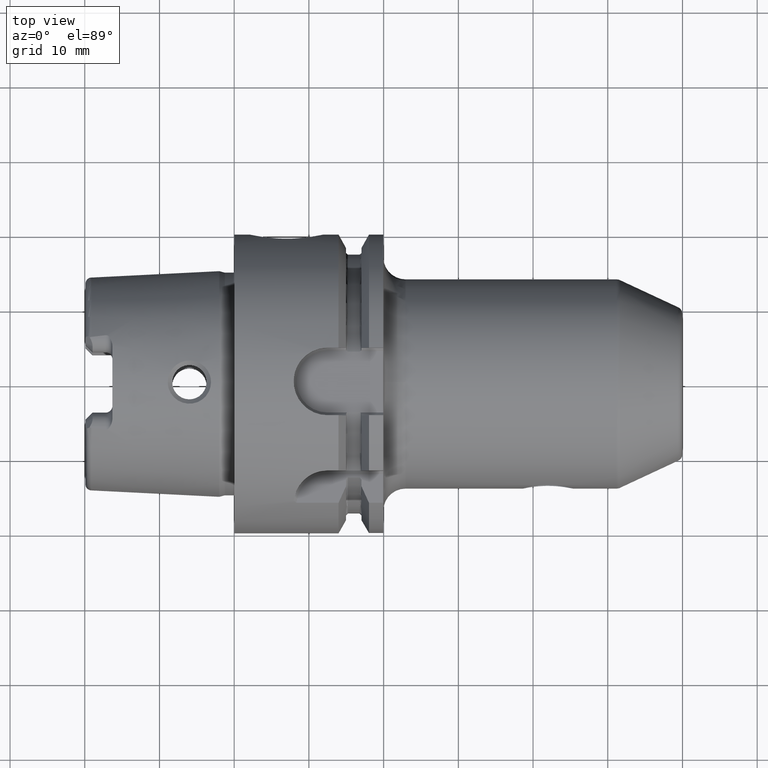
[diagram: clean part render]
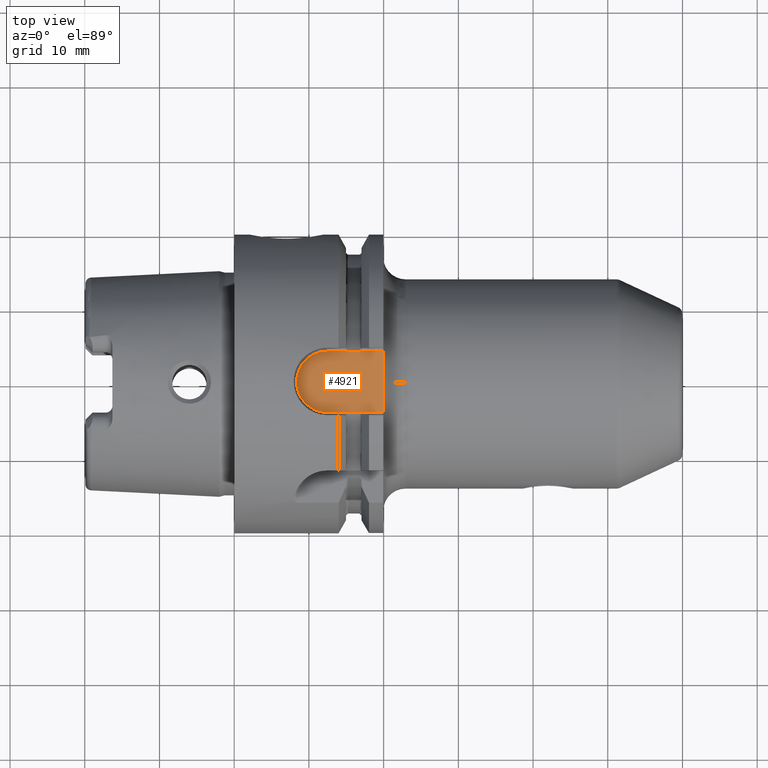
[diagram: same view with one face highlighted and labeled with its STEP entity id]
A machine part, top view. The second image highlights one B-rep face of the part: STEP entity #4921.
In plain terms, the highlighted planar face has unit normal (0, 0, 1).
Its self-contained STEP definition (entity closure, byte-faithful):
#1382=DIRECTION('',(0.E0,9.999999999925E-1,-3.873654482755E-6));
#1383=VECTOR('',#1382,2.273378394555E0);
#1384=CARTESIAN_POINT('',(1.995E1,1.841121605462E0,1.690000880628E1));
#1385=LINE('',#1384,#1383);
#1423=DIRECTION('',(0.E0,9.999999999992E-1,1.301774193577E-6));
#1424=VECTOR('',#1423,2.273319339446E0);
#1425=CARTESIAN_POINT('',(1.995E1,-4.1145E0,1.69E1));
#1426=LINE('',#1425,#1424);
#1432=CARTESIAN_POINT('',(1.995166712983E1,2.396912238614E-4,1.69E1));
#1433=CARTESIAN_POINT('',(1.995166722675E1,-2.046607415398E-1,1.69E1));
#1434=CARTESIAN_POINT('',(1.995140491991E1,-6.142642222903E-1,
1.690000039458E1));
#1435=CARTESIAN_POINT('',(1.995047669965E1,-1.228279460088E0,1.689999861897E1));
#1436=CARTESIAN_POINT('',(1.995E1,-1.636958723099E0,1.690000295935E1));
#1437=CARTESIAN_POINT('',(1.995E1,-1.841180660556E0,1.690000295935E1));
#1439=DIRECTION('',(-1.E0,0.E0,0.E0));
#1440=VECTOR('',#1439,3.067748527319E0);
#1441=CARTESIAN_POINT('',(1.995E1,-4.1145E0,1.69E1));
#1442=LINE('',#1441,#1440);
#1443=CARTESIAN_POINT('',(1.67875E1,-4.034925649873E0,1.69E1));
#1444=CARTESIAN_POINT('',(1.679787406173E1,-4.034925649873E0,1.69E1));
#1445=CARTESIAN_POINT('',(1.681719795106E1,-4.040402098261E0,1.69E1));
#1446=CARTESIAN_POINT('',(1.684231266705E1,-4.059484947889E0,1.69E1));
#1447=CARTESIAN_POINT('',(1.686302561359E1,-4.083690612343E0,1.69E1));
#1448=CARTESIAN_POINT('',(1.687599726943E1,-4.103671586136E0,1.69E1));
#1449=CARTESIAN_POINT('',(1.688225147268E1,-4.1145E0,1.69E1));
#1451=CARTESIAN_POINT('',(1.511774852732E1,-4.1145E0,1.69E1));
#1452=CARTESIAN_POINT('',(1.512413446271E1,-4.103443507506E0,1.69E1));
#1453=CARTESIAN_POINT('',(1.513730003709E1,-4.083099399012E0,1.69E1));
#1454=CARTESIAN_POINT('',(1.515942834800E1,-4.057771542358E0,1.69E1));
#1455=CARTESIAN_POINT('',(1.518388415073E1,-4.040012981236E0,1.69E1));
#1456=CARTESIAN_POINT('',(1.520259138077E1,-4.034925649873E0,1.69E1));
#1457=CARTESIAN_POINT('',(1.52125E1,-4.034925649873E0,1.69E1));
#1459=DIRECTION('',(-1.E0,5.592581025807E-9,5.448607834411E-9));
#1460=VECTOR('',#1459,2.653248516793E0);
#1461=CARTESIAN_POINT('',(1.511774852732E1,-4.1145E0,1.69E1));
#1462=LINE('',#1461,#1460);
#1463=CARTESIAN_POINT('',(1.24645E1,0.E0,1.689999871139E1));
#1464=DIRECTION('',(0.E0,0.E0,-1.E0));
#1465=DIRECTION('',(0.E0,-1.E0,0.E0));
#1466=AXIS2_PLACEMENT_3D('',#1463,#1464,#1465);
#1468=DIRECTION('',(1.E0,5.563888486479E-9,-5.477296021577E-9));
#1469=VECTOR('',#1468,2.653248516888E0);
#1470=CARTESIAN_POINT('',(1.246450001043E1,4.114499985238E0,1.690000001453E1));
#1471=LINE('',#1470,#1469);
#1472=CARTESIAN_POINT('',(1.52125E1,4.034925649873E0,1.69E1));
#1473=CARTESIAN_POINT('',(1.520175327246E1,4.034925649873E0,1.69E1));
#1474=CARTESIAN_POINT('',(1.518193945550E1,4.040936564755E0,1.69E1));
#1475=CARTESIAN_POINT('',(1.515790400694E1,4.059321494075E0,1.69E1));
#1476=CARTESIAN_POINT('',(1.513653778514E1,4.084220439880E0,1.69E1));
#1477=CARTESIAN_POINT('',(1.512387101856E1,4.103899629915E0,1.69E1));
#1478=CARTESIAN_POINT('',(1.511774852732E1,4.1145E0,1.69E1));
#1480=CARTESIAN_POINT('',(1.688225147268E1,4.1145E0,1.69E1));
#1481=CARTESIAN_POINT('',(1.687589987428E1,4.103502957941E0,1.69E1));
#1482=CARTESIAN_POINT('',(1.686273950578E1,4.083130775051E0,1.69E1));
#1483=CARTESIAN_POINT('',(1.684004064246E1,4.057117367548E0,1.69E1));
#1484=CARTESIAN_POINT('',(1.681453675275E1,4.039236764589E0,1.69E1));
#1485=CARTESIAN_POINT('',(1.679671103197E1,4.034925649873E0,1.69E1));
#1486=CARTESIAN_POINT('',(1.67875E1,4.034925649873E0,1.69E1));
#1488=DIRECTION('',(1.E0,0.E0,0.E0));
#1489=VECTOR('',#1488,3.067748527319E0);
#1490=CARTESIAN_POINT('',(1.688225147268E1,4.1145E0,1.69E1));
#1491=LINE('',#1490,#1489);
#1492=CARTESIAN_POINT('',(1.995E1,1.841121605462E0,1.690000880628E1));
#1493=CARTESIAN_POINT('',(1.995E1,1.636864330633E0,1.690000880628E1));
#1494=CARTESIAN_POINT('',(1.995047679372E1,1.228261816878E0,1.689999589040E1));
#1495=CARTESIAN_POINT('',(1.995140452061E1,6.145198602053E-1,1.690000117417E1));
#1496=CARTESIAN_POINT('',(1.995166703294E1,2.050635730530E-1,1.69E1));
#1497=CARTESIAN_POINT('',(1.995166712983E1,2.396912238614E-4,1.69E1));
#1770=DIRECTION('',(-1.E0,0.E0,0.E0));
#1771=VECTOR('',#1770,1.575E0);
#1772=CARTESIAN_POINT('',(1.67875E1,4.034925649873E0,1.69E1));
#1773=LINE('',#1772,#1771);
#1774=DIRECTION('',(1.E0,0.E0,0.E0));
#1775=VECTOR('',#1774,1.575E0);
#1776=CARTESIAN_POINT('',(1.52125E1,-4.034925649873E0,1.69E1));
#1777=LINE('',#1776,#1775);
#3082=CARTESIAN_POINT('',(1.52125E1,-4.034925649873E0,1.69E1));
#3084=VERTEX_POINT('',#3082);
#3086=CARTESIAN_POINT('',(1.67875E1,-4.034925649873E0,1.69E1));
#3088=VERTEX_POINT('',#3086);
#3100=CARTESIAN_POINT('',(1.52125E1,4.034925649873E0,1.69E1));
#3102=VERTEX_POINT('',#3100);
#3104=CARTESIAN_POINT('',(1.67875E1,4.034925649873E0,1.69E1));
#3106=VERTEX_POINT('',#3104);
#3112=VERTEX_POINT('',#1478);
#3113=VERTEX_POINT('',#1451);
#3114=VERTEX_POINT('',#1480);
#3115=VERTEX_POINT('',#1449);
#3141=CARTESIAN_POINT('',(1.24645E1,-4.114498623506E0,1.689999871139E1));
#3142=CARTESIAN_POINT('',(1.24645E1,4.114498623506E0,1.689999871139E1));
#3143=VERTEX_POINT('',#3141);
#3144=VERTEX_POINT('',#3142);
#3153=CARTESIAN_POINT('',(1.995E1,-4.1145E0,1.69E1));
#3155=VERTEX_POINT('',#3153);
#3158=CARTESIAN_POINT('',(1.995E1,4.1145E0,1.69E1));
#3160=VERTEX_POINT('',#3158);
#3335=CARTESIAN_POINT('',(1.995166712983E1,2.396912238576E-4,1.69E1));
#3337=VERTEX_POINT('',#3335);
#3373=CARTESIAN_POINT('',(1.995E1,-1.841232503546E0,1.689999594284E1));
#3374=VERTEX_POINT('',#3373);
#3375=VERTEX_POINT('',#1492);
#4891=CARTESIAN_POINT('',(0.E0,0.E0,1.69E1));
#4892=DIRECTION('',(0.E0,0.E0,1.E0));
#4893=DIRECTION('',(1.E0,0.E0,0.E0));
#4894=AXIS2_PLACEMENT_3D('',#4891,#4892,#4893);
#4895=PLANE('',#4894);
#4897=ORIENTED_EDGE('',*,*,#4896,.T.);
#4898=ORIENTED_EDGE('',*,*,#4884,.F.);
#4899=ORIENTED_EDGE('',*,*,#4720,.T.);
#4901=ORIENTED_EDGE('',*,*,#4900,.F.);
#4903=ORIENTED_EDGE('',*,*,#4902,.F.);
#4904=ORIENTED_EDGE('',*,*,#4753,.F.);
#4905=ORIENTED_EDGE('',*,*,#4708,.T.);
#4907=ORIENTED_EDGE('',*,*,#4906,.T.);
#4909=ORIENTED_EDGE('',*,*,#4908,.T.);
#4910=ORIENTED_EDGE('',*,*,#4739,.F.);
#4912=ORIENTED_EDGE('',*,*,#4911,.F.);
#4914=ORIENTED_EDGE('',*,*,#4913,.F.);
#4916=ORIENTED_EDGE('',*,*,#4915,.T.);
#4917=ORIENTED_EDGE('',*,*,#4848,.F.);
#4918=ORIENTED_EDGE('',*,*,#4835,.T.);
#4919=EDGE_LOOP('',(#4897,#4898,#4899,#4901,#4903,#4904,#4905,#4907,#4909,#4910,
#4912,#4914,#4916,#4917,#4918));
#4920=FACE_OUTER_BOUND('',#4919,.F.);
#4921=ADVANCED_FACE('',(#4920),#4895,.T.);
#1438=B_SPLINE_CURVE_WITH_KNOTS('',3,(#1432,#1433,#1434,#1435,#1436,#1437),
.UNSPECIFIED.,.F.,.F.,(4,1,1,4),(0.E0,3.333333333333E-1,6.666666666667E-1,1.E0),
.UNSPECIFIED.);
#1450=B_SPLINE_CURVE_WITH_KNOTS('',3,(#1443,#1444,#1445,#1446,#1447,#1448,
#1449),.UNSPECIFIED.,.F.,.F.,(4,1,1,1,4),(0.E0,2.5E-1,5.E-1,7.5E-1,1.E0),
.UNSPECIFIED.);
#1458=B_SPLINE_CURVE_WITH_KNOTS('',3,(#1451,#1452,#1453,#1454,#1455,#1456,
#1457),.UNSPECIFIED.,.F.,.F.,(4,1,1,1,4),(0.E0,2.5E-1,5.E-1,7.5E-1,1.E0),
.UNSPECIFIED.);
#1467=CIRCLE('',#1466,4.114498623506E0);
#1479=B_SPLINE_CURVE_WITH_KNOTS('',3,(#1472,#1473,#1474,#1475,#1476,#1477,
#1478),.UNSPECIFIED.,.F.,.F.,(4,1,1,1,4),(0.E0,2.5E-1,5.E-1,7.5E-1,1.E0),
.UNSPECIFIED.);
#1487=B_SPLINE_CURVE_WITH_KNOTS('',3,(#1480,#1481,#1482,#1483,#1484,#1485,
#1486),.UNSPECIFIED.,.F.,.F.,(4,1,1,1,4),(0.E0,2.5E-1,5.E-1,7.5E-1,1.E0),
.UNSPECIFIED.);
#1498=B_SPLINE_CURVE_WITH_KNOTS('',3,(#1492,#1493,#1494,#1495,#1496,#1497),
.UNSPECIFIED.,.F.,.F.,(4,1,1,4),(0.E0,3.333333333333E-1,6.666666666667E-1,1.E0),
.UNSPECIFIED.);
#4708=EDGE_CURVE('',#3113,#3143,#1462,.T.);
#4720=EDGE_CURVE('',#3155,#3115,#1442,.T.);
#4739=EDGE_CURVE('',#3102,#3112,#1479,.T.);
#4753=EDGE_CURVE('',#3113,#3084,#1458,.T.);
#4835=EDGE_CURVE('',#3375,#3337,#1498,.T.);
#4848=EDGE_CURVE('',#3375,#3160,#1385,.T.);
#4884=EDGE_CURVE('',#3155,#3374,#1426,.T.);
#4896=EDGE_CURVE('',#3337,#3374,#1438,.T.);
#4900=EDGE_CURVE('',#3088,#3115,#1450,.T.);
#4902=EDGE_CURVE('',#3084,#3088,#1777,.T.);
#4906=EDGE_CURVE('',#3143,#3144,#1467,.T.);
#4908=EDGE_CURVE('',#3144,#3112,#1471,.T.);
#4911=EDGE_CURVE('',#3106,#3102,#1773,.T.);
#4913=EDGE_CURVE('',#3114,#3106,#1487,.T.);
#4915=EDGE_CURVE('',#3114,#3160,#1491,.T.);